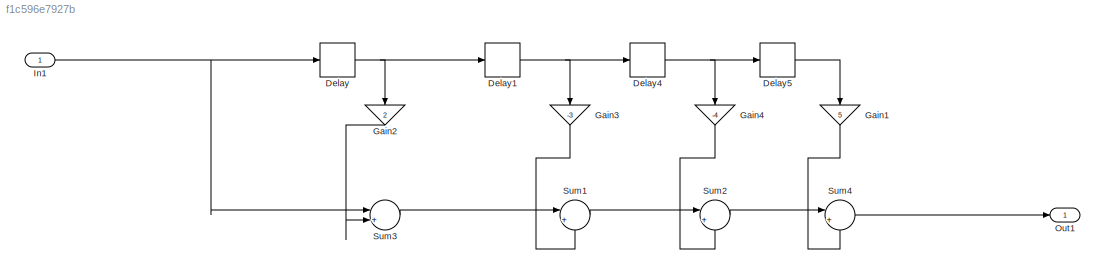
MODEL slx_f1c596e7927b
KIND model
CONFIG AbsTol = auto
CONFIG EnableMultiTasking = off
CONFIG FixedStep = auto
CONFIG MaxStep = auto
CONFIG MinStep = auto
CONFIG RelTol = 1e-3
CONFIG SampleTimeConstraint = Unconstrained
CONFIG SolverName = VariableStepAuto
CONFIG StartTime = 0.0
CONFIG StopTime = 10.0
BLOCK [Delay] Delay
  DelayLength = 1
  InputPortMap = u0
  Ports = [1, 1]
BLOCK [Delay] Delay1
  DelayLength = 1
  InputPortMap = u0
  Ports = [1, 1]
BLOCK [Delay] Delay4
  DelayLength = 1
  InputPortMap = u0
  Ports = [1, 1]
BLOCK [Delay] Delay5
  DelayLength = 1
  InputPortMap = u0
  Ports = [1, 1]
BLOCK [Gain] Gain1
  Gain = 5
  NameLocation = left
BLOCK [Gain] Gain2
  Gain = 2
  NameLocation = left
BLOCK [Gain] Gain3
  Gain = -3
  NameLocation = left
BLOCK [Gain] Gain4
  Gain = -4
  NameLocation = left
BLOCK [Inport] In1
  OutDataTypeStr = double
  PortDimensions = 1
  SampleTime = [0,1]
  SamplingMode = Sample based
  SignalType = real
BLOCK [Outport] Out1
  OutDataTypeStr = double
  PortDimensions = 1
  SampleTime = [0,1]
  SamplingMode = Sample based
  SignalType = real
BLOCK [Sum] Sum1
  Inputs = |++
  Ports = [2, 1]
BLOCK [Sum] Sum2
  Inputs = |++
  Ports = [2, 1]
BLOCK [Sum] Sum3
  Inputs = |++
  Ports = [2, 1]
BLOCK [Sum] Sum4
  Inputs = |++
  Ports = [2, 1]
NET Delay1:1 -> Delay4:1, Gain3:1
NET Delay4:1 -> Delay5:1, Gain4:1
LINE Delay5:1 -> Gain1:1
NET Delay:1 -> Delay1:1, Gain2:1
LINE Gain1:1 -> Sum4:2
LINE Gain2:1 -> Sum3:2
LINE Gain3:1 -> Sum1:2
LINE Gain4:1 -> Sum2:2
NET In1:1 -> Delay:1, Sum3:1
LINE Sum1:1 -> Sum2:1
LINE Sum2:1 -> Sum4:1
LINE Sum3:1 -> Sum1:1
LINE Sum4:1 -> Out1:1
note: NET lines group one-source signal fan-out (src -> all destinations, sorted); 1:1 wires keep LINE
